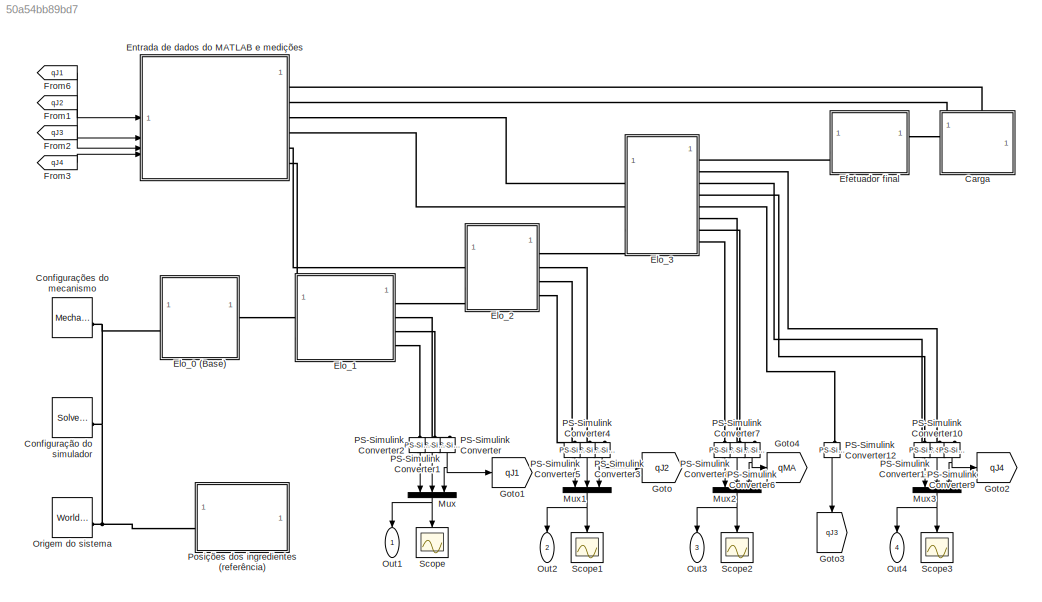
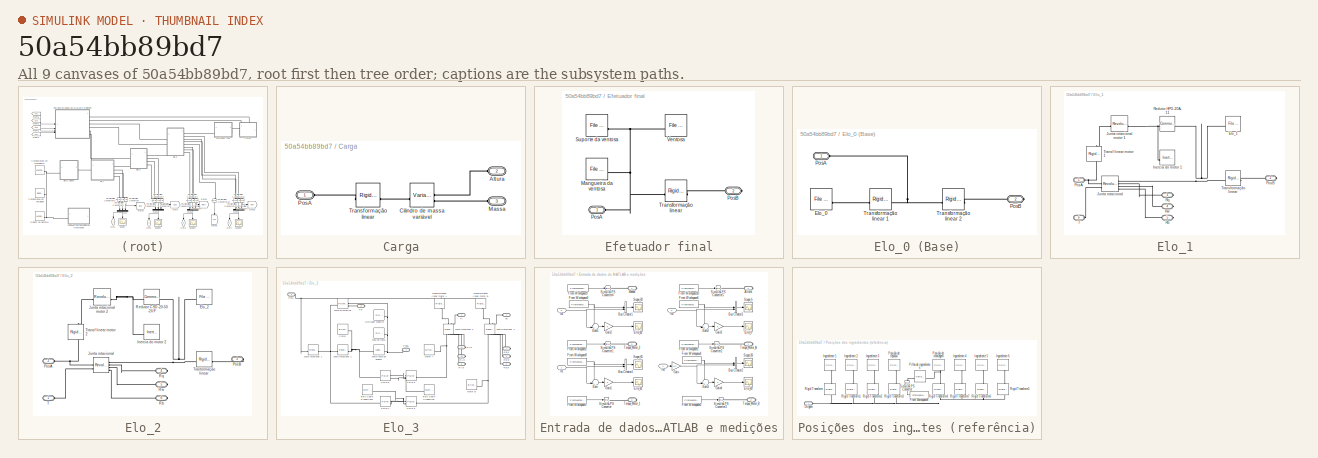
[diagram: thumbnail index - all 9 canvases of the model, root first then tree order]
MODEL slx_50a54bb89bd7
KIND model
CONFIG AbsTol = auto
CONFIG EnableMultiTasking = off
CONFIG FixedStep = 0.0001
CONFIG MaxStep = 1/30
CONFIG MinStep = auto
CONFIG RelTol = 1e-3
CONFIG SampleTimeConstraint = Unconstrained
CONFIG SolverName = FixedStepAuto
CONFIG StartTime = 0.0
CONFIG StopTime = sim.T
WORKSPACE source: external: MATLAB File  (data not in archive)
BLOCK [SubSystem] Carga
  PortSchema = {"entries":[{"content":{"sides":[{"content":{"connectorIds":["LConn1"]},"type":"ConnectorPlacement.EquallySpacedRectSide","uuid":"7dcb90cc-6053-4389-850d-4a6024ae2562"},{"content":{"connectorIds":[],"side":"RIGHT"},"type":"ConnectorPlacement.EquallySpacedRectSide","uuid":"d9f82682-ecd5-4555-8df6-b0bca68a112a"},{"content":{"connectorIds":["LConn2","LConn3"],"side":"TOP"},"type":"ConnectorPlacement....<+254ch>
BLOCK [PMIOPort] Carga/Altura
  NameLocation = top
  Port = 2
  Side = Left
BLOCK [Reference] Carga/Cilindro de massa variável  REF=sm_lib/Body Elements/Variable Mass/Variable
Cylindrical Solid
  NameLocation = top
  SourceBlock = sm_lib/Body Elements/Variable Mass/Variable\nCylindrical Solid
  SourceType = Variable\nCylindrical Solid
BLOCK [PMIOPort] Carga/Massa
  NameLocation = top
  Port = 3
  Side = Left
BLOCK [PMIOPort] Carga/PosA
  Side = Left
BLOCK [Reference] Carga/Transformação linear  REF=sm_lib/Frames and
Transforms/Rigid
Transform
  SourceBlock = sm_lib/Frames and\nTransforms/Rigid\nTransform
  SourceType = Rigid\nTransform
BLOCK [Reference] Configuração do simulador  REF=nesl_utility/Solver
Configuration
  SourceBlock = nesl_utility/Solver\nConfiguration
  SourceType = Solver\nConfiguration
BLOCK [Reference] Configurações do mecanismo  REF=sm_lib/Utilities/Mechanism
Configuration
  SourceBlock = sm_lib/Utilities/Mechanism\nConfiguration
  SourceType = Mechanism\nConfiguration
BLOCK [SubSystem] Efetuador final
BLOCK [Reference] Efetuador final/Mangueira da ventosa  REF=sm_lib/Body Elements/File Solid
  SourceBlock = sm_lib/Body Elements/File Solid
  SourceType = File Solid
BLOCK [PMIOPort] Efetuador final/PosA
  Side = Left
BLOCK [PMIOPort] Efetuador final/PosB
  Port = 2
  Side = Right
BLOCK [Reference] Efetuador final/Suporte da ventosa  REF=sm_lib/Body Elements/File Solid
  SourceBlock = sm_lib/Body Elements/File Solid
  SourceType = File Solid
BLOCK [Reference] Efetuador final/Transformação linear  REF=sm_lib/Frames and
Transforms/Rigid
Transform
  SourceBlock = sm_lib/Frames and\nTransforms/Rigid\nTransform
  SourceType = Rigid\nTransform
BLOCK [Reference] Efetuador final/Ventosa  REF=sm_lib/Body Elements/File Solid
  SourceBlock = sm_lib/Body Elements/File Solid
  SourceType = File Solid
BLOCK [SubSystem] Elo_0 (Base)
BLOCK [Reference] Elo_0 (Base)/Elo_0  REF=sm_lib/Body Elements/File Solid
  SourceBlock = sm_lib/Body Elements/File Solid
  SourceType = File Solid
BLOCK [PMIOPort] Elo_0 (Base)/PosA
  Side = Left
BLOCK [PMIOPort] Elo_0 (Base)/PosB
  Port = 2
  Side = Right
BLOCK [Reference] Elo_0 (Base)/Transformação linear 1  REF=sm_lib/Frames and
Transforms/Rigid
Transform
  SourceBlock = sm_lib/Frames and\nTransforms/Rigid\nTransform
  SourceType = Rigid\nTransform
BLOCK [Reference] Elo_0 (Base)/Transformação linear 2  REF=sm_lib/Frames and
Transforms/Rigid
Transform
  SourceBlock = sm_lib/Frames and\nTransforms/Rigid\nTransform
  SourceType = Rigid\nTransform
BLOCK [SubSystem] Elo_1
  PortSchema = {"entries":[{"content":{"sides":[{"content":{"connectorIds":["LConn1"]},"type":"ConnectorPlacement.EquallySpacedRectSide","uuid":"82f850ab-652d-46b8-b4b0-2bcf3291db03"},{"content":{"connectorIds":["RConn1","RConn2","RConn3","RConn4"],"side":"RIGHT"},"type":"ConnectorPlacement.EquallySpacedRectSide","uuid":"3e048aa8-bdff-40ef-96b7-c6dd626707e0"},{"content":{"connectorIds":["LConn2"],"side":"TOP"},"...<+424ch>
BLOCK [Reference] Elo_1/Elo_1  REF=sm_lib/Body Elements/File Solid
  SourceBlock = sm_lib/Body Elements/File Solid
  SourceType = File Solid
BLOCK [Reference] Elo_1/Inercia do motor 1  REF=sm_lib/Body Elements/Inertia
  SourceBlock = sm_lib/Body Elements/Inertia
  SourceType = Inertia
BLOCK [Reference] Elo_1/Junta rotacional  REF=sm_lib/Joints/Revolute Joint
  SourceBlock = sm_lib/Joints/Revolute Joint
  SourceType = Revolute Joint
BLOCK [Reference] Elo_1/Junta rotacional motor 1  REF=sm_lib/Joints/Revolute Joint
  SourceBlock = sm_lib/Joints/Revolute Joint
  SourceType = Revolute Joint
BLOCK [PMIOPort] Elo_1/PosA
  Side = Left
BLOCK [PMIOPort] Elo_1/PosB
  Port = 2
  Side = Right
BLOCK [PMIOPort] Elo_1/Rb
  Port = 5
  Side = Right
BLOCK [Reference] Elo_1/Redutor HPG-20A-11  REF=sm_lib/Gears and
Couplings/Gears/Common Gear
Constraint
  SourceBlock = sm_lib/Gears and\nCouplings/Gears/Common Gear\nConstraint
  SourceType = Common Gear\nConstraint
BLOCK [PMIOPort] Elo_1/Rq
  Port = 3
  Side = Right
BLOCK [PMIOPort] Elo_1/Rw
  Port = 4
  Side = Right
BLOCK [PMIOPort] Elo_1/T
  Port = 6
  Side = Left
BLOCK [Reference] Elo_1/Transf linear motor 1  REF=sm_lib/Frames and
Transforms/Rigid
Transform
  NameLocation = right
  SourceBlock = sm_lib/Frames and\nTransforms/Rigid\nTransform
  SourceType = Rigid\nTransform
BLOCK [Reference] Elo_1/Transformação linear  REF=sm_lib/Frames and
Transforms/Rigid
Transform
  SourceBlock = sm_lib/Frames and\nTransforms/Rigid\nTransform
  SourceType = Rigid\nTransform
BLOCK [SubSystem] Elo_2
BLOCK [Reference] Elo_2/Elo_2  REF=sm_lib/Body Elements/File Solid
  SourceBlock = sm_lib/Body Elements/File Solid
  SourceType = File Solid
BLOCK [Reference] Elo_2/Inercia do motor 2  REF=sm_lib/Body Elements/Inertia
  SourceBlock = sm_lib/Body Elements/Inertia
  SourceType = Inertia
BLOCK [Reference] Elo_2/Junta rotacional  REF=sm_lib/Joints/Revolute Joint
  SourceBlock = sm_lib/Joints/Revolute Joint
  SourceType = Revolute Joint
BLOCK [Reference] Elo_2/Junta rotacional motor 2  REF=sm_lib/Joints/Revolute Joint
  SourceBlock = sm_lib/Joints/Revolute Joint
  SourceType = Revolute Joint
BLOCK [PMIOPort] Elo_2/PosA
  Port = 2
  Side = Left
BLOCK [PMIOPort] Elo_2/PosB
  Port = 3
  Side = Right
BLOCK [PMIOPort] Elo_2/Rb
  Port = 6
  Side = Right
BLOCK [Reference] Elo_2/Redutor CSD-20-50-2UF  REF=sm_lib/Gears and
Couplings/Gears/Common Gear
Constraint
  SourceBlock = sm_lib/Gears and\nCouplings/Gears/Common Gear\nConstraint
  SourceType = Common Gear\nConstraint
BLOCK [PMIOPort] Elo_2/Rq
  Port = 4
  Side = Right
BLOCK [PMIOPort] Elo_2/Rw
  Port = 5
  Side = Right
BLOCK [PMIOPort] Elo_2/T
  Side = Left
BLOCK [Reference] Elo_2/Tranformação linear  REF=sm_lib/Frames and
Transforms/Rigid
Transform
  SourceBlock = sm_lib/Frames and\nTransforms/Rigid\nTransform
  SourceType = Rigid\nTransform
BLOCK [Reference] Elo_2/Transf linear motor 2  REF=sm_lib/Frames and
Transforms/Rigid
Transform
  NameLocation = right
  SourceBlock = sm_lib/Frames and\nTransforms/Rigid\nTransform
  SourceType = Rigid\nTransform
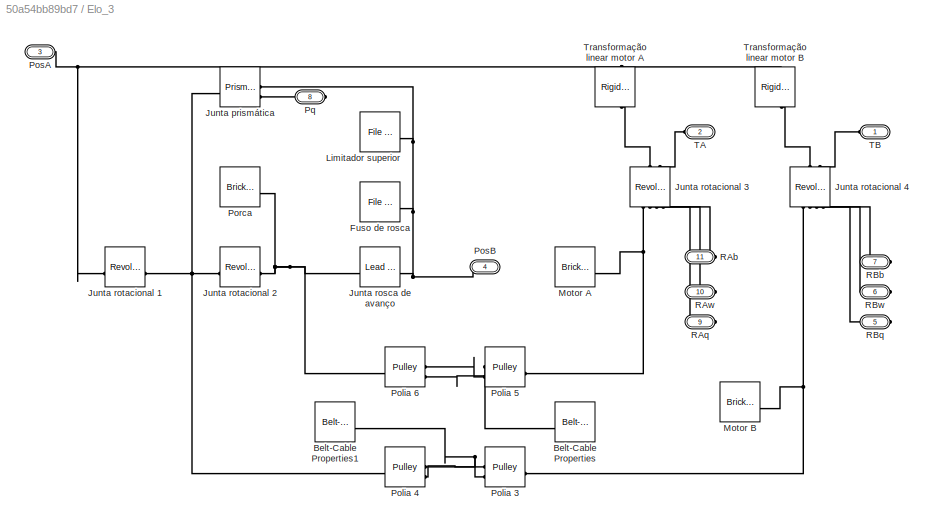
BLOCK [SubSystem] Elo_3
BLOCK [Reference] Elo_3/Belt-Cable Properties  REF=sm_lib/Belts and Cables/Belt-Cable
Properties
  SourceBlock = sm_lib/Belts and Cables/Belt-Cable\nProperties
  SourceType = Belt-Cable\nProperties
BLOCK [Reference] Elo_3/Belt-Cable Properties1  REF=sm_lib/Belts and Cables/Belt-Cable
Properties
  NameLocation = top
  SourceBlock = sm_lib/Belts and Cables/Belt-Cable\nProperties
  SourceType = Belt-Cable\nProperties
BLOCK [Reference] Elo_3/Fuso de rosca  REF=sm_lib/Body Elements/File Solid
  SourceBlock = sm_lib/Body Elements/File Solid
  SourceType = File Solid
BLOCK [Reference] Elo_3/Junta prismática  REF=sm_lib/Joints/Prismatic
Joint
  SourceBlock = sm_lib/Joints/Prismatic\nJoint
  SourceType = Prismatic\nJoint
BLOCK [Reference] Elo_3/Junta rosca de avanço  REF=sm_lib/Joints/Lead Screw
Joint
  SourceBlock = sm_lib/Joints/Lead Screw\nJoint
  SourceType = Lead Screw\nJoint
BLOCK [Reference] Elo_3/Junta rotacional 1  REF=sm_lib/Joints/Revolute Joint
  SourceBlock = sm_lib/Joints/Revolute Joint
  SourceType = Revolute Joint
BLOCK [Reference] Elo_3/Junta rotacional 2  REF=sm_lib/Joints/Revolute Joint
  SourceBlock = sm_lib/Joints/Revolute Joint
  SourceType = Revolute Joint
BLOCK [Reference] Elo_3/Junta rotacional 3  REF=sm_lib/Joints/Revolute Joint
  NameLocation = left
  SourceBlock = sm_lib/Joints/Revolute Joint
  SourceType = Revolute Joint
BLOCK [Reference] Elo_3/Junta rotacional 4  REF=sm_lib/Joints/Revolute Joint
  NameLocation = left
  SourceBlock = sm_lib/Joints/Revolute Joint
  SourceType = Revolute Joint
BLOCK [Reference] Elo_3/Limitador superior  REF=sm_lib/Body Elements/File Solid
  SourceBlock = sm_lib/Body Elements/File Solid
  SourceType = File Solid
BLOCK [Reference] Elo_3/Motor A  REF=sm_lib/Body Elements/Brick Solid
  SourceBlock = sm_lib/Body Elements/Brick Solid
  SourceType = Brick Solid
BLOCK [Reference] Elo_3/Motor B  REF=sm_lib/Body Elements/Brick Solid
  SourceBlock = sm_lib/Body Elements/Brick Solid
  SourceType = Brick Solid
BLOCK [Reference] Elo_3/Polia 3  REF=sm_lib/Belts and Cables/Pulley
  SourceBlock = sm_lib/Belts and Cables/Pulley
  SourceType = Pulley
BLOCK [Reference] Elo_3/Polia 4  REF=sm_lib/Belts and Cables/Pulley
  SourceBlock = sm_lib/Belts and Cables/Pulley
  SourceType = Pulley
BLOCK [Reference] Elo_3/Polia 5  REF=sm_lib/Belts and Cables/Pulley
  SourceBlock = sm_lib/Belts and Cables/Pulley
  SourceType = Pulley
BLOCK [Reference] Elo_3/Polia 6   REF=sm_lib/Belts and Cables/Pulley
  SourceBlock = sm_lib/Belts and Cables/Pulley
  SourceType = Pulley
BLOCK [Reference] Elo_3/Porca  REF=sm_lib/Body Elements/Brick Solid
  SourceBlock = sm_lib/Body Elements/Brick Solid
  SourceType = Brick Solid
BLOCK [PMIOPort] Elo_3/PosA
  Port = 3
  Side = Left
BLOCK [PMIOPort] Elo_3/PosB
  NameLocation = top
  Port = 4
  Side = Right
BLOCK [PMIOPort] Elo_3/Pq
  NameLocation = top
  Port = 8
  Side = Right
BLOCK [PMIOPort] Elo_3/RAb
  NameLocation = top
  Port = 11
  Side = Right
BLOCK [PMIOPort] Elo_3/RAq
  NameLocation = top
  Port = 9
  Side = Right
BLOCK [PMIOPort] Elo_3/RAw
  NameLocation = top
  Port = 10
  Side = Right
BLOCK [PMIOPort] Elo_3/RBb
  NameLocation = top
  Port = 7
  Side = Right
BLOCK [PMIOPort] Elo_3/RBq
  NameLocation = top
  Port = 5
  Side = Right
BLOCK [PMIOPort] Elo_3/RBw
  NameLocation = top
  Port = 6
  Side = Right
BLOCK [PMIOPort] Elo_3/TA
  NameLocation = top
  Port = 2
  Side = Left
BLOCK [PMIOPort] Elo_3/TB
  NameLocation = top
  Side = Left
BLOCK [Reference] Elo_3/Transformação linear motor A  REF=sm_lib/Frames and
Transforms/Rigid
Transform
  NameLocation = left
  SourceBlock = sm_lib/Frames and\nTransforms/Rigid\nTransform
  SourceType = Rigid\nTransform
BLOCK [Reference] Elo_3/Transformação linear motor B  REF=sm_lib/Frames and
Transforms/Rigid
Transform
  NameLocation = right
  SourceBlock = sm_lib/Frames and\nTransforms/Rigid\nTransform
  SourceType = Rigid\nTransform
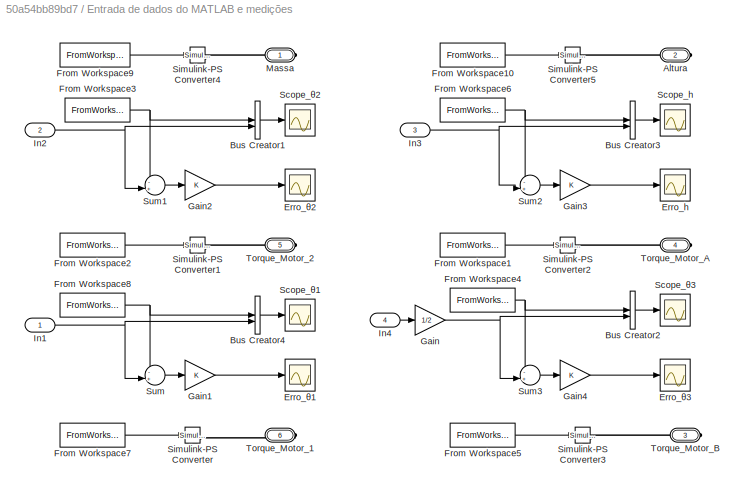
BLOCK [SubSystem] Entrada de dados do MATLAB e medições
BLOCK [PMIOPort] Entrada de dados do MATLAB e medições/Altura
  Port = 2
  Side = Right
BLOCK [BusCreator] Entrada de dados do MATLAB e medições/Bus Creator1
  DisplayOption = bar
  InheritFromInputs = on
  Inputs = 2
BLOCK [BusCreator] Entrada de dados do MATLAB e medições/Bus Creator2
  DisplayOption = bar
  InheritFromInputs = on
  Inputs = 2
BLOCK [BusCreator] Entrada de dados do MATLAB e medições/Bus Creator3
  DisplayOption = bar
  InheritFromInputs = on
  Inputs = 2
BLOCK [BusCreator] Entrada de dados do MATLAB e medições/Bus Creator4
  DisplayOption = bar
  InheritFromInputs = on
  Inputs = 2
BLOCK [Scope] Entrada de dados do MATLAB e medições/Erro_h
  Floating = off
  NumInputPorts = 1
  ScopeSpecificationString = Simulink.scopes.TimeScopeBlockCfg('CurrentConfiguration', extmgr.ConfigurationSet(extmgr.Configuration('Core','General UI',true,'FigureColor',[1 1 1]),extmgr.Configuration('Core','Source UI',true),extmgr.Configuration('Sources','WiredSimulink',true,'DataLoggingVariableName','ScopeData4'),extmgr.Configuration('Visuals','Time Domain',true,'PlotType','Line','SerializedDisplays',{struct('MinYLimReal',...<+1896ch>
BLOCK [Scope] Entrada de dados do MATLAB e medições/Erro_θ1
  Floating = off
  NumInputPorts = 1
  ScopeSpecificationString = Simulink.scopes.TimeScopeBlockCfg('CurrentConfiguration', extmgr.ConfigurationSet(extmgr.Configuration('Core','General UI',true,'FigureColor',[1 1 1]),extmgr.Configuration('Core','Source UI',true),extmgr.Configuration('Sources','WiredSimulink',true,'DataLoggingVariableName','ScopeData2'),extmgr.Configuration('Visuals','Time Domain',true,'PlotType','Line','SerializedDisplays',{struct('MinYLimReal',...<+1888ch>
BLOCK [Scope] Entrada de dados do MATLAB e medições/Erro_θ2
  Floating = off
  NumInputPorts = 1
  ScopeSpecificationString = Simulink.scopes.TimeScopeBlockCfg('CurrentConfiguration', extmgr.ConfigurationSet(extmgr.Configuration('Core','General UI',true,'FigureColor',[1 1 1]),extmgr.Configuration('Core','Source UI',true),extmgr.Configuration('Sources','WiredSimulink',true,'DataLoggingVariableName','ScopeData1'),extmgr.Configuration('Visuals','Time Domain',true,'PlotType','Line','SerializedDisplays',{struct('MinYLimReal',...<+1888ch>
BLOCK [Scope] Entrada de dados do MATLAB e medições/Erro_θ3
  Floating = off
  NumInputPorts = 1
  ScopeSpecificationString = Simulink.scopes.TimeScopeBlockCfg('CurrentConfiguration', extmgr.ConfigurationSet(extmgr.Configuration('Core','General UI',true,'FigureColor',[1 1 1]),extmgr.Configuration('Core','Source UI',true),extmgr.Configuration('Sources','WiredSimulink',true,'DataLoggingVariableName','ScopeData3'),extmgr.Configuration('Visuals','Time Domain',true,'PlotType','Line','SerializedDisplays',{struct('MinYLimReal',...<+1888ch>
BLOCK [FromWorkspace] Entrada de dados do MATLAB e medições/From Workspace1
  Interpolate = off
  OutputAfterFinalValue = Holding final value
  SampleTime = -1
  VariableName = sim.torq.A
BLOCK [FromWorkspace] Entrada de dados do MATLAB e medições/From Workspace10
  Interpolate = off
  OutputAfterFinalValue = Holding final value
  SampleTime = -1
  VariableName = sim.carga.h
BLOCK [FromWorkspace] Entrada de dados do MATLAB e medições/From Workspace2
  Interpolate = off
  OutputAfterFinalValue = Holding final value
  SampleTime = -1
  VariableName = sim.torq.J2
BLOCK [FromWorkspace] Entrada de dados do MATLAB e medições/From Workspace3
  Interpolate = off
  OutputAfterFinalValue = Holding final value
  SampleTime = -1
  VariableName = sim.q.J2
BLOCK [FromWorkspace] Entrada de dados do MATLAB e medições/From Workspace4
  Interpolate = off
  OutputAfterFinalValue = Holding final value
  SampleTime = -1
  VariableName = sim.q.J3
BLOCK [FromWorkspace] Entrada de dados do MATLAB e medições/From Workspace5
  Interpolate = off
  OutputAfterFinalValue = Holding final value
  SampleTime = -1
  VariableName = sim.torq.B
BLOCK [FromWorkspace] Entrada de dados do MATLAB e medições/From Workspace6
  Interpolate = off
  OutputAfterFinalValue = Holding final value
  SampleTime = -1
  VariableName = sim.q.J4
BLOCK [FromWorkspace] Entrada de dados do MATLAB e medições/From Workspace7
  Interpolate = off
  OutputAfterFinalValue = Holding final value
  SampleTime = -1
  VariableName = sim.torq.J1
BLOCK [FromWorkspace] Entrada de dados do MATLAB e medições/From Workspace8
  Interpolate = off
  OutputAfterFinalValue = Holding final value
  SampleTime = -1
  VariableName = sim.q.J1
BLOCK [FromWorkspace] Entrada de dados do MATLAB e medições/From Workspace9
  Interpolate = off
  OutputAfterFinalValue = Holding final value
  SampleTime = -1
  VariableName = sim.carga.m
BLOCK [Gain] Entrada de dados do MATLAB e medições/Gain
  Gain = 1/2
BLOCK [Gain] Entrada de dados do MATLAB e medições/Gain1
BLOCK [Gain] Entrada de dados do MATLAB e medições/Gain2
BLOCK [Gain] Entrada de dados do MATLAB e medições/Gain3
BLOCK [Gain] Entrada de dados do MATLAB e medições/Gain4
BLOCK [Inport] Entrada de dados do MATLAB e medições/In1
BLOCK [Inport] Entrada de dados do MATLAB e medições/In2
  Port = 2
BLOCK [Inport] Entrada de dados do MATLAB e medições/In3
  Port = 3
BLOCK [Inport] Entrada de dados do MATLAB e medições/In4
  Port = 4
BLOCK [PMIOPort] Entrada de dados do MATLAB e medições/Massa
  Side = Right
BLOCK [Scope] Entrada de dados do MATLAB e medições/Scope_h
  Floating = off
  NumInputPorts = 1
  ScopeSpecificationString = Simulink.scopes.TimeScopeBlockCfg('CurrentConfiguration', extmgr.ConfigurationSet(extmgr.Configuration('Core','General UI',true,'FigureColor',[1 1 1]),extmgr.Configuration('Core','Source UI',true),extmgr.Configuration('Sources','WiredSimulink',true,'DataLoggingVariableName','ScopeData2'),extmgr.Configuration('Visuals','Time Domain',true,'PlotType','Line','SerializedDisplays',{struct('MinYLimReal',...<+1899ch>
BLOCK [Scope] Entrada de dados do MATLAB e medições/Scope_θ1
  Floating = off
  NumInputPorts = 1
  ScopeSpecificationString = Simulink.scopes.TimeScopeBlockCfg('CurrentConfiguration', extmgr.ConfigurationSet(extmgr.Configuration('Core','General UI',true,'FigureColor',[1 1 1]),extmgr.Configuration('Core','Source UI',true),extmgr.Configuration('Sources','WiredSimulink',true,'DataLoggingVariableName','ScopeData4'),extmgr.Configuration('Visuals','Time Domain',true,'PlotType','Line','SerializedDisplays',{struct('MinYLimReal',...<+1898ch>
BLOCK [Scope] Entrada de dados do MATLAB e medições/Scope_θ2
  Floating = off
  NumInputPorts = 1
  ScopeSpecificationString = Simulink.scopes.TimeScopeBlockCfg('CurrentConfiguration', extmgr.ConfigurationSet(extmgr.Configuration('Core','General UI',true,'FigureColor',[1 1 1]),extmgr.Configuration('Core','Source UI',true),extmgr.Configuration('Sources','WiredSimulink',true,'DataLoggingVariableName','ScopeData1'),extmgr.Configuration('Visuals','Time Domain',true,'PlotType','Line','SerializedDisplays',{struct('MinYLimReal',...<+1899ch>
BLOCK [Scope] Entrada de dados do MATLAB e medições/Scope_θ3
  Floating = off
  NumInputPorts = 1
  ScopeSpecificationString = Simulink.scopes.TimeScopeBlockCfg('CurrentConfiguration', extmgr.ConfigurationSet(extmgr.Configuration('Core','General UI',true,'FigureColor',[1 1 1]),extmgr.Configuration('Core','Source UI',true),extmgr.Configuration('Sources','WiredSimulink',true,'DataLoggingVariableName','ScopeData3'),extmgr.Configuration('Visuals','Time Domain',true,'PlotType','Line','SerializedDisplays',{struct('MinYLimReal',...<+1899ch>
BLOCK [Reference] Entrada de dados do MATLAB e medições/Simulink-PS Converter  REF=nesl_utility/Simulink-PS
Converter
  SourceBlock = nesl_utility/Simulink-PS\nConverter
  SourceType = Simulink-PS\nConverter
BLOCK [Reference] Entrada de dados do MATLAB e medições/Simulink-PS Converter1  REF=nesl_utility/Simulink-PS
Converter
  SourceBlock = nesl_utility/Simulink-PS\nConverter
  SourceType = Simulink-PS\nConverter
BLOCK [Reference] Entrada de dados do MATLAB e medições/Simulink-PS Converter2  REF=nesl_utility/Simulink-PS
Converter
  SourceBlock = nesl_utility/Simulink-PS\nConverter
  SourceType = Simulink-PS\nConverter
BLOCK [Reference] Entrada de dados do MATLAB e medições/Simulink-PS Converter3  REF=nesl_utility/Simulink-PS
Converter
  SourceBlock = nesl_utility/Simulink-PS\nConverter
  SourceType = Simulink-PS\nConverter
BLOCK [Reference] Entrada de dados do MATLAB e medições/Simulink-PS Converter4  REF=nesl_utility/Simulink-PS
Converter
  SourceBlock = nesl_utility/Simulink-PS\nConverter
  SourceType = Simulink-PS\nConverter
BLOCK [Reference] Entrada de dados do MATLAB e medições/Simulink-PS Converter5  REF=nesl_utility/Simulink-PS
Converter
  SourceBlock = nesl_utility/Simulink-PS\nConverter
  SourceType = Simulink-PS\nConverter
BLOCK [Sum] Entrada de dados do MATLAB e medições/Sum
  Inputs = -+|
BLOCK [Sum] Entrada de dados do MATLAB e medições/Sum1
  Inputs = -+|
BLOCK [Sum] Entrada de dados do MATLAB e medições/Sum2
  Inputs = -+|
BLOCK [Sum] Entrada de dados do MATLAB e medições/Sum3
  Inputs = -+|
BLOCK [PMIOPort] Entrada de dados do MATLAB e medições/Torque_Motor_1
  Port = 6
  Side = Right
BLOCK [PMIOPort] Entrada de dados do MATLAB e medições/Torque_Motor_2
  Port = 5
  Side = Right
BLOCK [PMIOPort] Entrada de dados do MATLAB e medições/Torque_Motor_A
  Port = 4
  Side = Right
BLOCK [PMIOPort] Entrada de dados do MATLAB e medições/Torque_Motor_B
  Port = 3
  Side = Right
BLOCK [From] From1
  GotoTag = qJ2
BLOCK [From] From2
  GotoTag = qJ3
BLOCK [From] From3
  GotoTag = qJ4
BLOCK [From] From6
  GotoTag = qJ1
BLOCK [Goto] Goto
  GotoTag = qJ2
BLOCK [Goto] Goto1
  GotoTag = qJ1
BLOCK [Goto] Goto2
  GotoTag = qJ4
BLOCK [Goto] Goto3
  GotoTag = qJ3
  NameLocation = left
BLOCK [Goto] Goto4
  GotoTag = qMA
BLOCK [Mux] Mux
  DisplayOption = bar
  Inputs = 3
  NameLocation = left
BLOCK [Mux] Mux1
  DisplayOption = bar
  Inputs = 3
  NameLocation = left
BLOCK [Mux] Mux2
  DisplayOption = bar
  Inputs = 3
  NameLocation = left
BLOCK [Mux] Mux3
  DisplayOption = bar
  Inputs = 3
  NameLocation = left
BLOCK [Reference] Origem do sistema  REF=sm_lib/Frames and
Transforms/World Frame
  SourceBlock = sm_lib/Frames and\nTransforms/World Frame
  SourceType = World Frame
BLOCK [Outport] Out1
  NameLocation = left
BLOCK [Outport] Out2
  NameLocation = left
  Port = 2
BLOCK [Outport] Out3
  NameLocation = left
  Port = 3
BLOCK [Outport] Out4
  NameLocation = left
  Port = 4
BLOCK [Reference] PS-Simulink Converter  REF=nesl_utility/PS-Simulink
Converter
  NameLocation = left
  SourceBlock = nesl_utility/PS-Simulink\nConverter
  SourceType = PS-Simulink\nConverter
BLOCK [Reference] PS-Simulink Converter1  REF=nesl_utility/PS-Simulink
Converter
  NameLocation = left
  SourceBlock = nesl_utility/PS-Simulink\nConverter
  SourceType = PS-Simulink\nConverter
BLOCK [Reference] PS-Simulink Converter10  REF=nesl_utility/PS-Simulink
Converter
  NameLocation = left
  SourceBlock = nesl_utility/PS-Simulink\nConverter
  SourceType = PS-Simulink\nConverter
BLOCK [Reference] PS-Simulink Converter11  REF=nesl_utility/PS-Simulink
Converter
  NameLocation = left
  SourceBlock = nesl_utility/PS-Simulink\nConverter
  SourceType = PS-Simulink\nConverter
BLOCK [Reference] PS-Simulink Converter12  REF=nesl_utility/PS-Simulink
Converter
  NameLocation = left
  SourceBlock = nesl_utility/PS-Simulink\nConverter
  SourceType = PS-Simulink\nConverter
BLOCK [Reference] PS-Simulink Converter2  REF=nesl_utility/PS-Simulink
Converter
  NameLocation = left
  SourceBlock = nesl_utility/PS-Simulink\nConverter
  SourceType = PS-Simulink\nConverter
BLOCK [Reference] PS-Simulink Converter3  REF=nesl_utility/PS-Simulink
Converter
  NameLocation = left
  SourceBlock = nesl_utility/PS-Simulink\nConverter
  SourceType = PS-Simulink\nConverter
BLOCK [Reference] PS-Simulink Converter4  REF=nesl_utility/PS-Simulink
Converter
  NameLocation = left
  SourceBlock = nesl_utility/PS-Simulink\nConverter
  SourceType = PS-Simulink\nConverter
BLOCK [Reference] PS-Simulink Converter5  REF=nesl_utility/PS-Simulink
Converter
  NameLocation = left
  SourceBlock = nesl_utility/PS-Simulink\nConverter
  SourceType = PS-Simulink\nConverter
BLOCK [Reference] PS-Simulink Converter6  REF=nesl_utility/PS-Simulink
Converter
  NameLocation = left
  SourceBlock = nesl_utility/PS-Simulink\nConverter
  SourceType = PS-Simulink\nConverter
BLOCK [Reference] PS-Simulink Converter7  REF=nesl_utility/PS-Simulink
Converter
  NameLocation = left
  SourceBlock = nesl_utility/PS-Simulink\nConverter
  SourceType = PS-Simulink\nConverter
BLOCK [Reference] PS-Simulink Converter8  REF=nesl_utility/PS-Simulink
Converter
  NameLocation = left
  SourceBlock = nesl_utility/PS-Simulink\nConverter
  SourceType = PS-Simulink\nConverter
BLOCK [Reference] PS-Simulink Converter9  REF=nesl_utility/PS-Simulink
Converter
  NameLocation = left
  SourceBlock = nesl_utility/PS-Simulink\nConverter
  SourceType = PS-Simulink\nConverter
BLOCK [SubSystem] Posições dos ingredientes (referência)
BLOCK [FromWorkspace] Posições dos ingredientes (referência)/From Workspace8
  Interpolate = off
  NameLocation = top
  OutputAfterFinalValue = Holding final value
  SampleTime = -1
  VariableName = sim.h_pilha
BLOCK [Reference] Posições dos ingredientes (referência)/Ingrediente 1  REF=sm_lib/Body Elements/Cylindrical Solid
  NameLocation = top
  SourceBlock = sm_lib/Body Elements/Cylindrical Solid
  SourceType = Cylindrical Solid
BLOCK [Reference] Posições dos ingredientes (referência)/Ingrediente 2  REF=sm_lib/Body Elements/Cylindrical Solid
  NameLocation = top
  SourceBlock = sm_lib/Body Elements/Cylindrical Solid
  SourceType = Cylindrical Solid
BLOCK [Reference] Posições dos ingredientes (referência)/Ingrediente 3  REF=sm_lib/Body Elements/Cylindrical Solid
  NameLocation = top
  SourceBlock = sm_lib/Body Elements/Cylindrical Solid
  SourceType = Cylindrical Solid
BLOCK [Reference] Posições dos ingredientes (referência)/Ingrediente 4  REF=sm_lib/Body Elements/Cylindrical Solid
  NameLocation = top
  SourceBlock = sm_lib/Body Elements/Cylindrical Solid
  SourceType = Cylindrical Solid
BLOCK [Reference] Posições dos ingredientes (referência)/Ingrediente 5  REF=sm_lib/Body Elements/Cylindrical Solid
  NameLocation = top
  SourceBlock = sm_lib/Body Elements/Cylindrical Solid
  SourceType = Cylindrical Solid
BLOCK [Reference] Posições dos ingredientes (referência)/Ingrediente 6  REF=sm_lib/Body Elements/Cylindrical Solid
  NameLocation = top
  SourceBlock = sm_lib/Body Elements/Cylindrical Solid
  SourceType = Cylindrical Solid
BLOCK [PMIOPort] Posições dos ingredientes (referência)/Origem
  Side = Left
BLOCK [Reference] Posições dos ingredientes (referência)/Pilha de ingredientes  REF=sm_lib/Body Elements/Variable Mass/Variable
Cylindrical Solid
  NameLocation = top
  SourceBlock = sm_lib/Body Elements/Variable Mass/Variable\nCylindrical Solid
  SourceType = Variable\nCylindrical Solid
BLOCK [Reference] Posições dos ingredientes (referência)/Posição de montagem  REF=sm_lib/Body Elements/Cylindrical Solid
  NameLocation = top
  SourceBlock = sm_lib/Body Elements/Cylindrical Solid
  SourceType = Cylindrical Solid
BLOCK [Reference] Posições dos ingredientes (referência)/Posição de repouso  REF=sm_lib/Body Elements/Cylindrical Solid
  NameLocation = top
  SourceBlock = sm_lib/Body Elements/Cylindrical Solid
  SourceType = Cylindrical Solid
BLOCK [Reference] Posições dos ingredientes (referência)/Rigid Transform  REF=sm_lib/Frames and
Transforms/Rigid
Transform
  NameLocation = right
  SourceBlock = sm_lib/Frames and\nTransforms/Rigid\nTransform
  SourceType = Rigid\nTransform
BLOCK [Reference] Posições dos ingredientes (referência)/Rigid Transform1  REF=sm_lib/Frames and
Transforms/Rigid
Transform
  NameLocation = right
  SourceBlock = sm_lib/Frames and\nTransforms/Rigid\nTransform
  SourceType = Rigid\nTransform
BLOCK [Reference] Posições dos ingredientes (referência)/Rigid Transform2  REF=sm_lib/Frames and
Transforms/Rigid
Transform
  NameLocation = right
  SourceBlock = sm_lib/Frames and\nTransforms/Rigid\nTransform
  SourceType = Rigid\nTransform
BLOCK [Reference] Posições dos ingredientes (referência)/Rigid Transform3  REF=sm_lib/Frames and
Transforms/Rigid
Transform
  NameLocation = right
  SourceBlock = sm_lib/Frames and\nTransforms/Rigid\nTransform
  SourceType = Rigid\nTransform
BLOCK [Reference] Posições dos ingredientes (referência)/Rigid Transform4  REF=sm_lib/Frames and
Transforms/Rigid
Transform
  NameLocation = right
  SourceBlock = sm_lib/Frames and\nTransforms/Rigid\nTransform
  SourceType = Rigid\nTransform
BLOCK [Reference] Posições dos ingredientes (referência)/Rigid Transform5  REF=sm_lib/Frames and
Transforms/Rigid
Transform
  NameLocation = right
  SourceBlock = sm_lib/Frames and\nTransforms/Rigid\nTransform
  SourceType = Rigid\nTransform
BLOCK [Reference] Posições dos ingredientes (referência)/Rigid Transform6  REF=sm_lib/Frames and
Transforms/Rigid
Transform
  NameLocation = right
  SourceBlock = sm_lib/Frames and\nTransforms/Rigid\nTransform
  SourceType = Rigid\nTransform
BLOCK [Reference] Posições dos ingredientes (referência)/Rigid Transform7  REF=sm_lib/Frames and
Transforms/Rigid
Transform
  NameLocation = right
  SourceBlock = sm_lib/Frames and\nTransforms/Rigid\nTransform
  SourceType = Rigid\nTransform
BLOCK [Reference] Posições dos ingredientes (referência)/Simulink-PS Converter  REF=nesl_utility/Simulink-PS
Converter
  NameLocation = right
  SourceBlock = nesl_utility/Simulink-PS\nConverter
  SourceType = Simulink-PS\nConverter
BLOCK [Scope] Scope
  Floating = off
  NameLocation = left
  NumInputPorts = 1
  ScopeSpecificationString = Simulink.scopes.TimeScopeBlockCfg('CurrentConfiguration', extmgr.ConfigurationSet(extmgr.Configuration('Core','General UI',true),extmgr.Configuration('Core','Source UI',true),extmgr.Configuration('Sources','WiredSimulink',true),extmgr.Configuration('Visuals','Time Domain',true,'PlotType','Stairs','SerializedDisplays',{struct('MinYLimReal','-34.7758','MaxYLimReal','33.47365','YLabelReal','','MinYLi...<+1488ch>
BLOCK [Scope] Scope1
  Floating = off
  NameLocation = left
  NumInputPorts = 1
  ScopeSpecificationString = Simulink.scopes.TimeScopeBlockCfg('CurrentConfiguration', extmgr.ConfigurationSet(extmgr.Configuration('Core','General UI',true),extmgr.Configuration('Core','Source UI',true),extmgr.Configuration('Sources','WiredSimulink',true,'DataLoggingVariableName','ScopeData1'),extmgr.Configuration('Visuals','Time Domain',true,'PlotType','Stairs','SerializedDisplays',{struct('MinYLimReal','-718.21194','MaxYLi...<+1540ch>
BLOCK [Scope] Scope2
  Floating = off
  NameLocation = left
  NumInputPorts = 1
  ScopeSpecificationString = Simulink.scopes.TimeScopeBlockCfg('CurrentConfiguration', extmgr.ConfigurationSet(extmgr.Configuration('Core','General UI',true),extmgr.Configuration('Core','Source UI',true),extmgr.Configuration('Sources','WiredSimulink',true,'DataLoggingVariableName','ScopeData2'),extmgr.Configuration('Visuals','Time Domain',true,'PlotType','Stairs','SerializedDisplays',{struct('MinYLimReal','-2555.70721','MaxYL...<+1833ch>
BLOCK [Scope] Scope3
  Floating = off
  NameLocation = left
  NumInputPorts = 1
  ScopeSpecificationString = Simulink.scopes.TimeScopeBlockCfg('CurrentConfiguration', extmgr.ConfigurationSet(extmgr.Configuration('Core','General UI',true),extmgr.Configuration('Core','Source UI',true),extmgr.Configuration('Sources','WiredSimulink',true,'DataLoggingVariableName','ScopeData3'),extmgr.Configuration('Visuals','Time Domain',true,'PlotType','Stairs','SerializedDisplays',{struct('MinYLimReal','-0.00000000000022',...<+1552ch>
LINE Entrada de dados do MATLAB e medições/Bus Creator1:1 -> Entrada de dados do MATLAB e medições/Scope_θ2:1
LINE Entrada de dados do MATLAB e medições/Bus Creator2:1 -> Entrada de dados do MATLAB e medições/Scope_θ3:1
LINE Entrada de dados do MATLAB e medições/Bus Creator3:1 -> Entrada de dados do MATLAB e medições/Scope_h:1
LINE Entrada de dados do MATLAB e medições/Bus Creator4:1 -> Entrada de dados do MATLAB e medições/Scope_θ1:1
LINE Entrada de dados do MATLAB e medições/From Workspace10:1 -> Entrada de dados do MATLAB e medições/Simulink-PS Converter5:1
LINE Entrada de dados do MATLAB e medições/From Workspace1:1 -> Entrada de dados do MATLAB e medições/Simulink-PS Converter2:1
LINE Entrada de dados do MATLAB e medições/From Workspace2:1 -> Entrada de dados do MATLAB e medições/Simulink-PS Converter1:1
NET Entrada de dados do MATLAB e medições/From Workspace3:1 -> Entrada de dados do MATLAB e medições/Bus Creator1:1, Entrada de dados do MATLAB e medições/Sum1:1
NET Entrada de dados do MATLAB e medições/From Workspace4:1 -> Entrada de dados do MATLAB e medições/Bus Creator2:1, Entrada de dados do MATLAB e medições/Sum3:1
LINE Entrada de dados do MATLAB e medições/From Workspace5:1 -> Entrada de dados do MATLAB e medições/Simulink-PS Converter3:1
NET Entrada de dados do MATLAB e medições/From Workspace6:1 -> Entrada de dados do MATLAB e medições/Bus Creator3:1, Entrada de dados do MATLAB e medições/Sum2:1
LINE Entrada de dados do MATLAB e medições/From Workspace7:1 -> Entrada de dados do MATLAB e medições/Simulink-PS Converter:1
NET Entrada de dados do MATLAB e medições/From Workspace8:1 -> Entrada de dados do MATLAB e medições/Bus Creator4:1, Entrada de dados do MATLAB e medições/Sum:1
LINE Entrada de dados do MATLAB e medições/From Workspace9:1 -> Entrada de dados do MATLAB e medições/Simulink-PS Converter4:1
LINE Entrada de dados do MATLAB e medições/Gain1:1 -> Entrada de dados do MATLAB e medições/Erro_θ1:1
LINE Entrada de dados do MATLAB e medições/Gain2:1 -> Entrada de dados do MATLAB e medições/Erro_θ2:1
LINE Entrada de dados do MATLAB e medições/Gain3:1 -> Entrada de dados do MATLAB e medições/Erro_h:1
LINE Entrada de dados do MATLAB e medições/Gain4:1 -> Entrada de dados do MATLAB e medições/Erro_θ3:1
NET Entrada de dados do MATLAB e medições/Gain:1 -> Entrada de dados do MATLAB e medições/Bus Creator2:2, Entrada de dados do MATLAB e medições/Sum3:2
NET Entrada de dados do MATLAB e medições/In1:1 -> Entrada de dados do MATLAB e medições/Bus Creator4:2, Entrada de dados do MATLAB e medições/Sum:2
NET Entrada de dados do MATLAB e medições/In2:1 -> Entrada de dados do MATLAB e medições/Bus Creator1:2, Entrada de dados do MATLAB e medições/Sum1:2
NET Entrada de dados do MATLAB e medições/In3:1 -> Entrada de dados do MATLAB e medições/Bus Creator3:2, Entrada de dados do MATLAB e medições/Sum2:2
LINE Entrada de dados do MATLAB e medições/In4:1 -> Entrada de dados do MATLAB e medições/Gain:1
LINE Entrada de dados do MATLAB e medições/Sum1:1 -> Entrada de dados do MATLAB e medições/Gain2:1
LINE Entrada de dados do MATLAB e medições/Sum2:1 -> Entrada de dados do MATLAB e medições/Gain3:1
LINE Entrada de dados do MATLAB e medições/Sum3:1 -> Entrada de dados do MATLAB e medições/Gain4:1
LINE Entrada de dados do MATLAB e medições/Sum:1 -> Entrada de dados do MATLAB e medições/Gain1:1
LINE From1:1 -> Entrada de dados do MATLAB e medições:2
LINE From2:1 -> Entrada de dados do MATLAB e medições:3
LINE From3:1 -> Entrada de dados do MATLAB e medições:4
LINE From6:1 -> Entrada de dados do MATLAB e medições:1
NET Mux1:1 -> Out2:1, Scope1:1
NET Mux2:1 -> Out3:1, Scope2:1
NET Mux3:1 -> Out4:1, Scope3:1
NET Mux:1 -> Out1:1, Scope:1
LINE PS-Simulink Converter10:1 -> Mux3:2
LINE PS-Simulink Converter11:1 -> Mux3:1
LINE PS-Simulink Converter12:1 -> Goto3:1
LINE PS-Simulink Converter1:1 -> Mux:2
LINE PS-Simulink Converter2:1 -> Mux:1
NET PS-Simulink Converter3:1 -> Goto:1, Mux1:3
LINE PS-Simulink Converter4:1 -> Mux1:2
LINE PS-Simulink Converter5:1 -> Mux1:1
NET PS-Simulink Converter6:1 -> Goto4:1, Mux2:3
LINE PS-Simulink Converter7:1 -> Mux2:2
LINE PS-Simulink Converter8:1 -> Mux2:1
NET PS-Simulink Converter9:1 -> Goto2:1, Mux3:3
NET PS-Simulink Converter:1 -> Goto1:1, Mux:3
LINE Posições dos ingredientes (referência)/From Workspace8:1 -> Posições dos ingredientes (referência)/Simulink-PS Converter:1
PLINE Carga/Altura:RConn1 -- Carga/Cilindro de massa variável:LConn1
PLINE Carga/Cilindro de massa variável:LConn2 -- Carga/Massa:RConn1
PLINE Carga/Cilindro de massa variável:RConn1 -- Carga/Transformação linear:LConn1
PLINE Carga/PosA:RConn1 -- Carga/Transformação linear:RConn1
PLINE Carga:LConn1 -- Efetuador final:RConn1
PLINE Carga:LConn2 -- Entrada de dados do MATLAB e medições:RConn2
PLINE Carga:LConn3 -- Entrada de dados do MATLAB e medições:RConn1
PNET net1: Configuração do simulador:RConn1 -- Configurações do mecanismo:RConn1 -- Elo_0 (Base):LConn1 -- Origem do sistema:RConn1 -- Posições dos ingredientes (referência):LConn1
PNET net2: Efetuador final/Mangueira da ventosa:RConn1 -- Efetuador final/PosA:RConn1 -- Efetuador final/Suporte da ventosa:RConn1 -- Efetuador final/Transformação linear:LConn1 -- Efetuador final/Ventosa:RConn1
PLINE Efetuador final/PosB:RConn1 -- Efetuador final/Transformação linear:RConn1
PLINE Efetuador final:LConn1 -- Elo_3:RConn1
PLINE Elo_0 (Base)/Elo_0:RConn1 -- Elo_0 (Base)/Transformação linear 1:LConn1
PNET net3: Elo_0 (Base)/PosA:RConn1 -- Elo_0 (Base)/Transformação linear 1:RConn1 -- Elo_0 (Base)/Transformação linear 2:LConn1
PLINE Elo_0 (Base)/PosB:RConn1 -- Elo_0 (Base)/Transformação linear 2:RConn1
PLINE Elo_0 (Base):RConn1 -- Elo_1:LConn1
PNET net4: Elo_1/Elo_1:RConn1 -- Elo_1/Junta rotacional:RConn1 -- Elo_1/Redutor HPG-20A-11:RConn1 -- Elo_1/Transformação linear:LConn1
PNET net5: Elo_1/Inercia do motor 1:RConn1 -- Elo_1/Junta rotacional motor 1:RConn1 -- Elo_1/Redutor HPG-20A-11:LConn1
PLINE Elo_1/Junta rotacional motor 1:LConn1 -- Elo_1/Transf linear motor 1:RConn1
PNET net6: Elo_1/Junta rotacional:LConn1 -- Elo_1/PosA:RConn1 -- Elo_1/Transf linear motor 1:LConn1
PLINE Elo_1/Junta rotacional:LConn2 -- Elo_1/T:RConn1
PLINE Elo_1/Junta rotacional:RConn2 -- Elo_1/Rq:RConn1
PLINE Elo_1/Junta rotacional:RConn3 -- Elo_1/Rw:RConn1
PLINE Elo_1/Junta rotacional:RConn4 -- Elo_1/Rb:RConn1
PLINE Elo_1/PosB:RConn1 -- Elo_1/Transformação linear:RConn1
PLINE Elo_1:LConn2 -- Entrada de dados do MATLAB e medições:RConn6
PLINE Elo_1:RConn1 -- Elo_2:LConn2
PLINE Elo_1:RConn2 -- PS-Simulink Converter:LConn1
PLINE Elo_1:RConn3 -- PS-Simulink Converter1:LConn1
PLINE Elo_1:RConn4 -- PS-Simulink Converter2:LConn1
PNET net7: Elo_2/Elo_2:RConn1 -- Elo_2/Junta rotacional:RConn1 -- Elo_2/Redutor CSD-20-50-2UF:RConn1 -- Elo_2/Tranformação linear:LConn1
PNET net8: Elo_2/Inercia do motor 2:RConn1 -- Elo_2/Junta rotacional motor 2:RConn1 -- Elo_2/Redutor CSD-20-50-2UF:LConn1
PLINE Elo_2/Junta rotacional motor 2:LConn1 -- Elo_2/Transf linear motor 2:RConn1
PNET net9: Elo_2/Junta rotacional:LConn1 -- Elo_2/PosA:RConn1 -- Elo_2/Transf linear motor 2:LConn1
PLINE Elo_2/Junta rotacional:LConn2 -- Elo_2/T:RConn1
PLINE Elo_2/Junta rotacional:RConn2 -- Elo_2/Rq:RConn1
PLINE Elo_2/Junta rotacional:RConn3 -- Elo_2/Rw:RConn1
PLINE Elo_2/Junta rotacional:RConn4 -- Elo_2/Rb:RConn1
PLINE Elo_2/PosB:RConn1 -- Elo_2/Tranformação linear:RConn1
PLINE Elo_2:LConn1 -- Entrada de dados do MATLAB e medições:RConn5
PLINE Elo_2:RConn1 -- Elo_3:LConn3
PLINE Elo_2:RConn2 -- PS-Simulink Converter3:LConn1
PLINE Elo_2:RConn3 -- PS-Simulink Converter4:LConn1
PLINE Elo_2:RConn4 -- PS-Simulink Converter5:LConn1
PNET net10: Elo_3/Belt-Cable Properties1:LConn1 -- Elo_3/Polia 3:RConn2 -- Elo_3/Polia 4:RConn1
PNET net11: Elo_3/Belt-Cable Properties:LConn1 -- Elo_3/Polia 5:RConn2 -- Elo_3/Polia 6 :RConn1
PNET net12: Elo_3/Fuso de rosca:RConn1 -- Elo_3/Junta prismática:RConn1 -- Elo_3/Junta rosca de avanço:RConn1 -- Elo_3/Limitador superior:RConn1 -- Elo_3/PosB:RConn1
PNET net13: Elo_3/Junta prismática:LConn1 -- Elo_3/Junta rotacional 1:RConn1 -- Elo_3/Junta rotacional 2:LConn1 -- Elo_3/Polia 4:LConn1
PLINE Elo_3/Junta prismática:RConn2 -- Elo_3/Pq:RConn1
PNET net14: Elo_3/Junta rosca de avanço:LConn1 -- Elo_3/Junta rotacional 2:RConn1 -- Elo_3/Polia 6 :LConn1 -- Elo_3/Porca:RConn1
PNET net15: Elo_3/Junta rotacional 1:LConn1 -- Elo_3/PosA:RConn1 -- Elo_3/Transformação linear motor A:LConn1 -- Elo_3/Transformação linear motor B:LConn1
PLINE Elo_3/Junta rotacional 3:LConn1 -- Elo_3/Transformação linear motor A:RConn1
PLINE Elo_3/Junta rotacional 3:LConn2 -- Elo_3/TA:RConn1
PNET net16: Elo_3/Junta rotacional 3:RConn1 -- Elo_3/Motor A:RConn1 -- Elo_3/Polia 5:LConn1
PLINE Elo_3/Junta rotacional 3:RConn2 -- Elo_3/RAq:RConn1
PLINE Elo_3/Junta rotacional 3:RConn3 -- Elo_3/RAw:RConn1
PLINE Elo_3/Junta rotacional 3:RConn4 -- Elo_3/RAb:RConn1
PLINE Elo_3/Junta rotacional 4:LConn1 -- Elo_3/Transformação linear motor B:RConn1
PLINE Elo_3/Junta rotacional 4:LConn2 -- Elo_3/TB:RConn1
PNET net17: Elo_3/Junta rotacional 4:RConn1 -- Elo_3/Motor B:RConn1 -- Elo_3/Polia 3:LConn1
PLINE Elo_3/Junta rotacional 4:RConn2 -- Elo_3/RBq:RConn1
PLINE Elo_3/Junta rotacional 4:RConn3 -- Elo_3/RBw:RConn1
PLINE Elo_3/Junta rotacional 4:RConn4 -- Elo_3/RBb:RConn1
PLINE Elo_3/Polia 3:RConn1 -- Elo_3/Polia 4:RConn2
PLINE Elo_3/Polia 5:RConn1 -- Elo_3/Polia 6 :RConn2
PLINE Elo_3:LConn1 -- Entrada de dados do MATLAB e medições:RConn3
PLINE Elo_3:LConn2 -- Entrada de dados do MATLAB e medições:RConn4
PLINE Elo_3:RConn2 -- PS-Simulink Converter9:LConn1
PLINE Elo_3:RConn3 -- PS-Simulink Converter10:LConn1
PLINE Elo_3:RConn4 -- PS-Simulink Converter11:LConn1
PLINE Elo_3:RConn5 -- PS-Simulink Converter12:LConn1
PLINE Elo_3:RConn6 -- PS-Simulink Converter6:LConn1
PLINE Elo_3:RConn7 -- PS-Simulink Converter7:LConn1
PLINE Elo_3:RConn8 -- PS-Simulink Converter8:LConn1
PLINE Entrada de dados do MATLAB e medições/Altura:RConn1 -- Entrada de dados do MATLAB e medições/Simulink-PS Converter5:RConn1
PLINE Entrada de dados do MATLAB e medições/Massa:RConn1 -- Entrada de dados do MATLAB e medições/Simulink-PS Converter4:RConn1
PLINE Entrada de dados do MATLAB e medições/Simulink-PS Converter1:RConn1 -- Entrada de dados do MATLAB e medições/Torque_Motor_2:RConn1
PLINE Entrada de dados do MATLAB e medições/Simulink-PS Converter2:RConn1 -- Entrada de dados do MATLAB e medições/Torque_Motor_A:RConn1
PLINE Entrada de dados do MATLAB e medições/Simulink-PS Converter3:RConn1 -- Entrada de dados do MATLAB e medições/Torque_Motor_B:RConn1
PLINE Entrada de dados do MATLAB e medições/Simulink-PS Converter:RConn1 -- Entrada de dados do MATLAB e medições/Torque_Motor_1:RConn1
PLINE Posições dos ingredientes (referência)/Ingrediente 1:RConn1 -- Posições dos ingredientes (referência)/Rigid Transform:RConn1
PLINE Posições dos ingredientes (referência)/Ingrediente 2:RConn1 -- Posições dos ingredientes (referência)/Rigid Transform1:RConn1
PLINE Posições dos ingredientes (referência)/Ingrediente 3:RConn1 -- Posições dos ingredientes (referência)/Rigid Transform2:RConn1
PLINE Posições dos ingredientes (referência)/Ingrediente 4:RConn1 -- Posições dos ingredientes (referência)/Rigid Transform7:RConn1
PLINE Posições dos ingredientes (referência)/Ingrediente 5:RConn1 -- Posições dos ingredientes (referência)/Rigid Transform6:RConn1
PLINE Posições dos ingredientes (referência)/Ingrediente 6:RConn1 -- Posições dos ingredientes (referência)/Rigid Transform5:RConn1
PNET net18: Posições dos ingredientes (referência)/Origem:RConn1 -- Posições dos ingredientes (referência)/Rigid Transform1:LConn1 -- Posições dos ingredientes (referência)/Rigid Transform2:LConn1 -- Posições dos ingredientes (referência)/Rigid Transform3:LConn1 -- Posições dos ingredientes (referência)/Rigid Transform4:LConn1 -- Posições dos ingredientes (referência)/Rigid Transform5:LConn1 -- Posições dos ingredientes (referência)/Rigid Transform6:LConn1 -- Posições dos ingredientes (referência)/Rigid Transform7:LConn1 -- Posições dos ingredientes (referência)/Rigid Transform:LConn1
PLINE Posições dos ingredientes (referência)/Pilha de ingredientes:LConn1 -- Posições dos ingredientes (referência)/Simulink-PS Converter:RConn1
PNET net19: Posições dos ingredientes (referência)/Pilha de ingredientes:RConn1 -- Posições dos ingredientes (referência)/Posição de montagem:RConn1 -- Posições dos ingredientes (referência)/Rigid Transform4:RConn1
PLINE Posições dos ingredientes (referência)/Posição de repouso:RConn1 -- Posições dos ingredientes (referência)/Rigid Transform3:RConn1
note: NET lines group one-source signal fan-out (src -> all destinations, sorted); 1:1 wires keep LINE; PNET lines group multi-terminal physical nets as a canonical sorted terminal list (undirected conserving connections); 2-terminal nets keep the pairwise PLINE form
